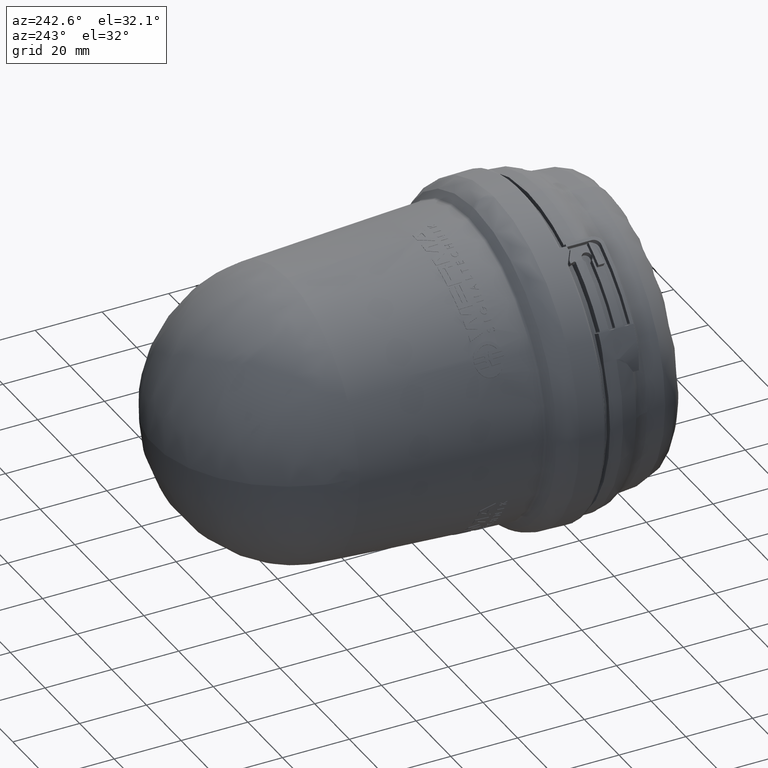
[diagram: clean part render]
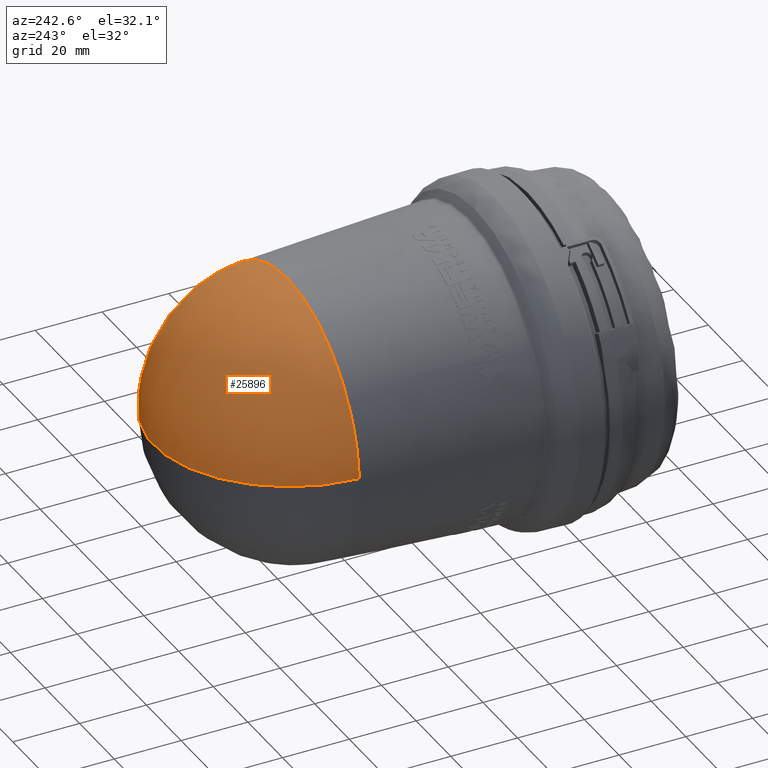
[diagram: same view with one face highlighted and labeled with its STEP entity id]
A machine part, auxiliary view. The second image highlights one B-rep face of the part: STEP entity #25896.
In plain terms, the highlighted face is a freeform B-spline surface patch.
Its self-contained STEP definition (entity closure, byte-faithful):
#288 = AXIS2_PLACEMENT_3D ( 'NONE', #14411, #31668, #16912 ) ;
#289 = DIRECTION ( 'NONE',  ( 0.0000000000000000000, -1.000000000000000000, -0.0000000000000000000 ) ) ;
#1123 = CARTESIAN_POINT ( 'NONE',  ( -1.455730842273550900, 6.860912180607435600, 1.832705320410105400 ) ) ;
#1984 =( BOUNDED_SURFACE ( )  B_SPLINE_SURFACE ( 3, 3, ( 
 ( #3286, #23352, #8516, #25836 ),
 ( #11044, #28291, #13506, #30780 ),
 ( #15986, #1123, #18491, #3642 ),
 ( #20961, #6093, #23474, #8628 ) ),
 .UNSPECIFIED., .F., .F., .F. ) 
 B_SPLINE_SURFACE_WITH_KNOTS ( ( 4, 4 ),
 ( 4, 4 ),
 ( 0.0000000000000000000, 1.000000000000000000 ),
 ( 0.0000000000000000000, 1.000000000000000000 ),
 .UNSPECIFIED. ) 
 GEOMETRIC_REPRESENTATION_ITEM ( )  RATIONAL_B_SPLINE_SURFACE ( (
 ( 1.000000000000000000, 0.8147517981800461700, 0.8147517981800461700, 1.000000000000000000),
 ( 0.3560085432830952800, 0.2900586008073606800, 0.2900586008073606800, 0.3560085432830952800),
 ( 0.3560085432830952800, 0.2900586008073606800, 0.2900586008073606800, 0.3560085432830952800),
 ( 1.000000000000000000, 0.8147517981800461700, 0.8147517981800461700, 1.000000000000000000) ) ) 
 REPRESENTATION_ITEM ( '' )  SURFACE ( )  );
#2249 = VERTEX_POINT ( 'NONE', #18068 ) ;
#2623 = ORIENTED_EDGE ( 'NONE', *, *, #7519, .F. ) ;
#3286 = CARTESIAN_POINT ( 'NONE',  ( 1.637097978837981100, 3.794114082297314300, -0.07147724138968066000 ) ) ;
#3642 = CARTESIAN_POINT ( 'NONE',  ( -1.396747696575313200, 3.872419506391714600, 3.183641460791589900 ) ) ;
#4799 = CARTESIAN_POINT ( 'NONE',  ( 8.733594488188976900E-017, 3.738346456692917200, -3.813169291338583100E-018 ) ) ;
#5526 = CARTESIAN_POINT ( 'NONE',  ( -1.635810964302296900, 3.823963857565461800, 0.07142104912151572800 ) ) ;
#6093 = CARTESIAN_POINT ( 'NONE',  ( -1.635721085068019100, 3.794114082297313800, 0.1030132934819930500 ) ) ;
#7093 = CIRCLE ( 'NONE', #27961, 1.637369377169670200 ) ;
#7289 = DIRECTION ( 'NONE',  ( 0.9990482215818578000, 0.0000000000000000000, -0.04361938736533300900 ) ) ;
#7519 = EDGE_CURVE ( 'NONE', #2249, #18917, #20780, .T. ) ;
#8516 = CARTESIAN_POINT ( 'NONE',  ( 1.639469165735432300, 3.772277926758361000, -0.01716813261895867900 ) ) ;
#8628 = CARTESIAN_POINT ( 'NONE',  ( -1.634667672497364300, 3.740740941325211700, 0.1271404080260540000 ) ) ;
#9922 = EDGE_CURVE ( 'NONE', #13321, #2249, #7093, .T. ) ;
#11044 = CARTESIAN_POINT ( 'NONE',  ( 1.532826491316505100, 6.860912180607435600, -0.06692464992602016600 ) ) ;
#13321 = VERTEX_POINT ( 'NONE', #31763 ) ;
#13506 = CARTESIAN_POINT ( 'NONE',  ( 1.665595043872389900, 5.638252436911555400, 2.973975150018734600 ) ) ;
#14411 = CARTESIAN_POINT ( 'NONE',  ( 0.0000000000000000000, 3.823963857565461800, 0.0000000000000000000 ) ) ;
#15144 = CARTESIAN_POINT ( 'NONE',  ( 0.0000000000000000000, 3.823963857565461800, 0.0000000000000000000 ) ) ;
#15986 = CARTESIAN_POINT ( 'NONE',  ( -1.532826491316505100, 6.860912180607435600, 0.06692464992602016600 ) ) ;
#16522 = ORIENTED_EDGE ( 'NONE', *, *, #20868, .T. ) ;
#16912 = DIRECTION ( 'NONE',  ( 0.0000000000000000000, 0.0000000000000000000, -1.000000000000000000 ) ) ;
#17639 = DIRECTION ( 'NONE',  ( 0.0000000000000000000, 0.0000000000000000000, -1.000000000000000000 ) ) ;
#18068 = CARTESIAN_POINT ( 'NONE',  ( 2.072993061166018300E-016, 3.823963857565461800, 1.637369377169670200 ) ) ;
#18491 = CARTESIAN_POINT ( 'NONE',  ( -1.400057938760620500, 5.638252436911555400, 3.107824449870775200 ) ) ;
#18917 = VERTEX_POINT ( 'NONE', #5526 ) ;
#20097 = AXIS2_PLACEMENT_3D ( 'NONE', #4799, #22130, #7289 ) ;
#20780 = CIRCLE ( 'NONE', #288, 1.637369377169670200 ) ;
#20868 = EDGE_CURVE ( 'NONE', #13321, #18917, #31815, .T. ) ;
#20961 = CARTESIAN_POINT ( 'NONE',  ( -1.637097978837981100, 3.794114082297314300, 0.07147724138968066000 ) ) ;
#22130 = DIRECTION ( 'NONE',  ( 0.04361938736533300200, 0.0000000000000000000, 0.9990482215818580200 ) ) ;
#22987 = ORIENTED_EDGE ( 'NONE', *, *, #9922, .F. ) ;
#23352 = CARTESIAN_POINT ( 'NONE',  ( 1.638474872607943900, 3.794114082297313800, -0.03994118929736827100 ) ) ;
#23474 = CARTESIAN_POINT ( 'NONE',  ( -1.634726791940531300, 3.772277926758362800, 0.1257863501604035700 ) ) ;
#24212 = EDGE_LOOP ( 'NONE', ( #22987, #16522, #2623 ) ) ;
#25836 = CARTESIAN_POINT ( 'NONE',  ( 1.639528285178599300, 3.740740941325211700, -0.01581407475330824300 ) ) ;
#25896 = ADVANCED_FACE ( 'NONE', ( #30575 ), #1984, .T. ) ;
#27961 = AXIS2_PLACEMENT_3D ( 'NONE', #15144, #289, #17639 ) ;
#28291 = CARTESIAN_POINT ( 'NONE',  ( 1.609922140359459200, 6.860912180607435600, 1.698856020558064500 ) ) ;
#30575 = FACE_OUTER_BOUND ( 'NONE', #24212, .T. ) ;
#30780 = CARTESIAN_POINT ( 'NONE',  ( 1.668905286057697200, 3.872419506391714600, 3.049792160939549700 ) ) ;
#31668 = DIRECTION ( 'NONE',  ( 0.0000000000000000000, -1.000000000000000000, -0.0000000000000000000 ) ) ;
#31763 = CARTESIAN_POINT ( 'NONE',  ( 1.635810964302296900, 3.823963857565461800, -0.07142104912151572800 ) ) ;
#31815 = CIRCLE ( 'NONE', #20097, 1.639606299212598600 ) ;